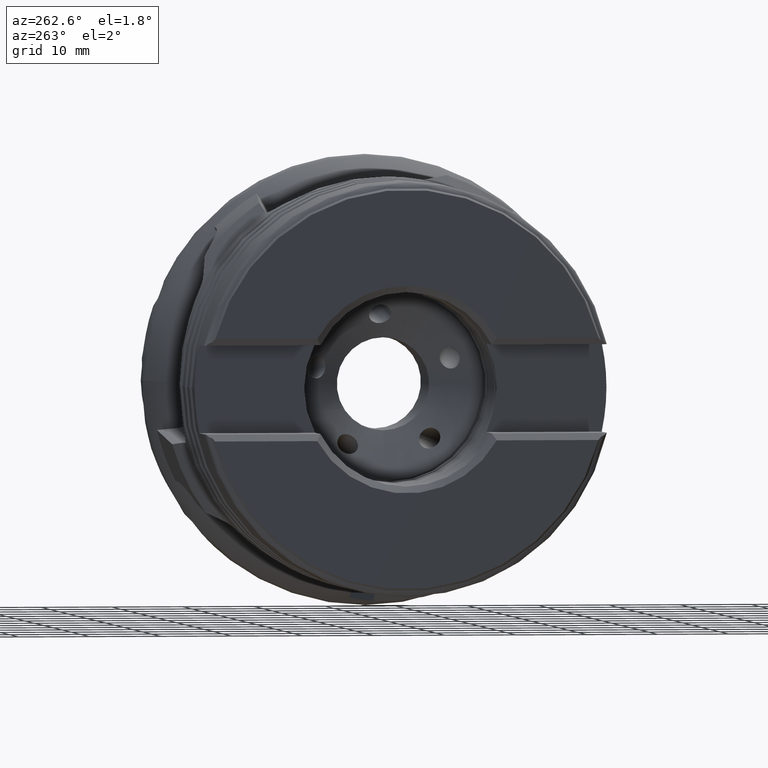
[diagram: clean part render]
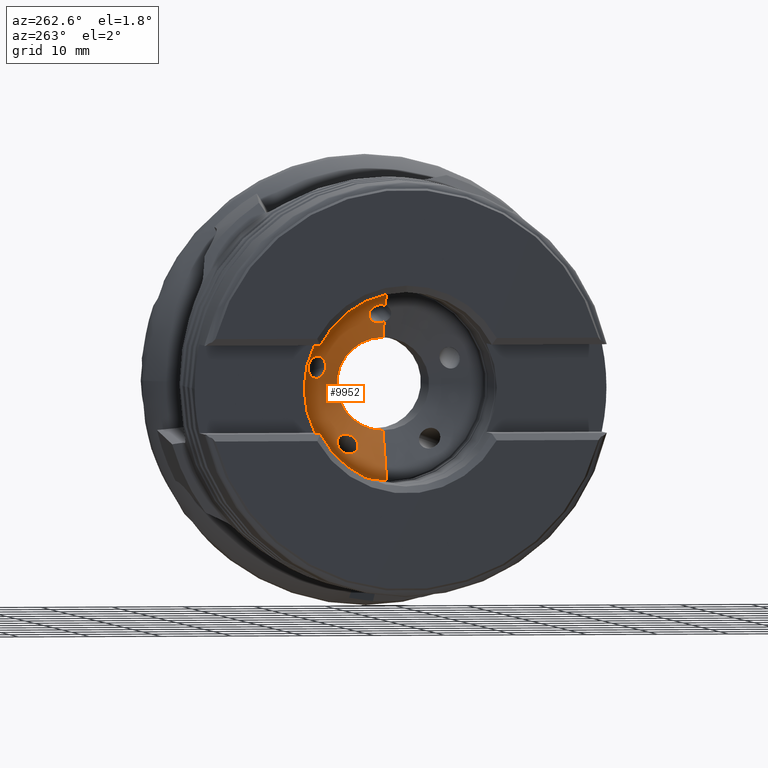
[diagram: same view with one face highlighted and labeled with its STEP entity id]
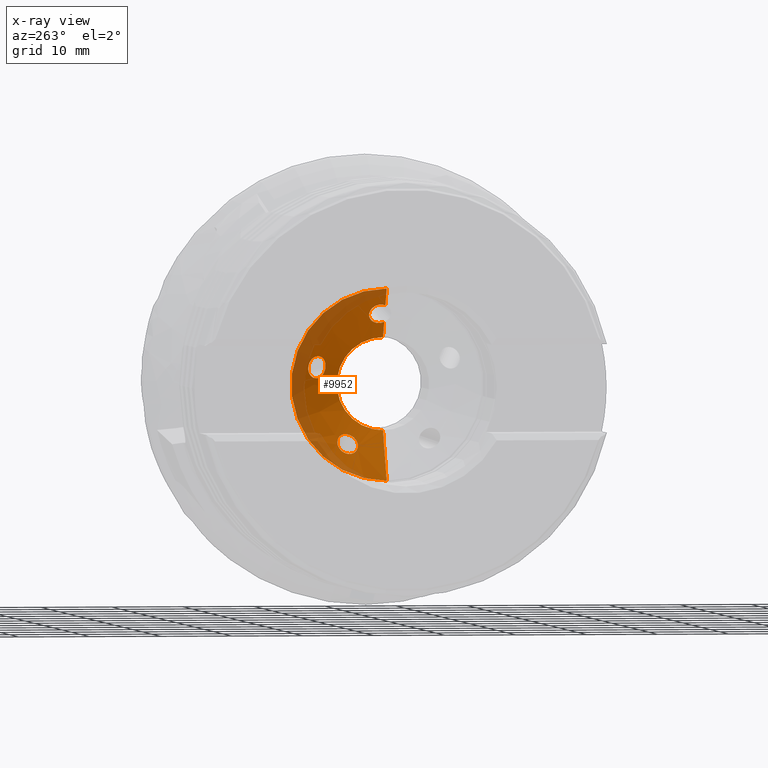
[diagram: x-ray of the same camera — body ghosted, the highlighted face saturated]
A machine part, auxiliary view. The second image highlights one B-rep face of the part: STEP entity #9952.
The next image is the same camera in x-ray: the body ghosted, the highlighted face saturated — about 31% of this face is hidden behind the body in this view.
In plain terms, the highlighted conical surface has half-angle 60 deg.
Its self-contained STEP definition (entity closure, byte-faithful):
#338 = CARTESIAN_POINT ( 'NONE',  ( -25.56358023476015300, -1.384384954681091700E-012, 11.02685375626323600 ) ) ;
#360 = CARTESIAN_POINT ( 'NONE',  ( -26.95000000000000300, 1.644480610425695100E-015, -13.42820323027542700 ) ) ;
#373 = DIRECTION ( 'NONE',  ( 1.000000000000000000, -0.0000000000000000000, -0.0000000000000000000 ) ) ;
#381 = DIRECTION ( 'NONE',  ( 0.0000000000000000000, 0.0000000000000000000, -1.000000000000000000 ) ) ;
#408 = CARTESIAN_POINT ( 'NONE',  ( -26.95000000000000300, 0.0000000000000000000, 0.0000000000000000000 ) ) ;
#558 = CARTESIAN_POINT ( 'NONE',  ( -24.15742040143022300, 8.251610350877568200, 2.391985357919235200 ) ) ;
#562 = CARTESIAN_POINT ( 'NONE',  ( -22.95000000000000300, 7.960204194457793500E-016, 6.499999999999997300 ) ) ;
#590 = CARTESIAN_POINT ( 'NONE',  ( -25.55926849021573900, 5.231105059518401200, -9.698577151403526400 ) ) ;
#604 = CARTESIAN_POINT ( 'NONE',  ( -26.95000000000000300, 0.0000000000000000000, 13.42820323027542700 ) ) ;
#624 = CARTESIAN_POINT ( 'NONE',  ( -24.24057022828447600, 5.231105059518402100, -6.995826332771656600 ) ) ;
#733 = CARTESIAN_POINT ( 'NONE',  ( -22.95000000000000300, 0.0000000000000000000, -6.499999999999997300 ) ) ;
#977 = EDGE_CURVE ( 'NONE', #1818, #1819, #2820, .T. ) ;
#990 = EDGE_CURVE ( 'NONE', #2739, #3309, #2972, .T. ) ;
#1019 = EDGE_CURVE ( 'NONE', #2708, #1962, #1548, .T. ) ;
#1080 = CARTESIAN_POINT ( 'NONE',  ( -25.45062589595287200, 1.800447555128324300, 10.68083400545929600 ) ) ;
#1093 = CARTESIAN_POINT ( 'NONE',  ( -25.50768649055383400, 1.654599074518111800, 10.80438953978278800 ) ) ;
#1095 = CARTESIAN_POINT ( 'NONE',  ( -25.63853396552734100, 0.6390776336853606400, 11.13835854018392300 ) ) ;
#1097 = CARTESIAN_POINT ( 'NONE',  ( -25.53290561030062000, 1.574292013130909700, 10.86058495848309500 ) ) ;
#1098 = CARTESIAN_POINT ( 'NONE',  ( -25.59235563991525500, 1.317191980707755900, 10.99852258601849200 ) ) ;
#1110 = CARTESIAN_POINT ( 'NONE',  ( -25.63289957320982300, 1.036786302028729800, 11.10028013828029700 ) ) ;
#1111 = CARTESIAN_POINT ( 'NONE',  ( -25.64375329316993300, 0.8393848597418304100, 11.13592066437589000 ) ) ;
#1137 = CARTESIAN_POINT ( 'NONE',  ( -25.57507434009070800, 1.405964445905568200, 10.95729463097800000 ) ) ;
#1308 = EDGE_LOOP ( 'NONE', ( #6097, #6098, #6099, #6100, #6101, #6102, #6103, #6104 ) ) ;
#1337 = EDGE_LOOP ( 'NONE', ( #6107, #6108 ) ) ;
#1347 = EDGE_LOOP ( 'NONE', ( #6105, #6106 ) ) ;
#1548 = CIRCLE ( 'NONE', #8327, 13.42820323027542500 ) ;
#1749 = CARTESIAN_POINT ( 'NONE',  ( -25.62323296733228500, 10.86924613008447300, 2.395890484783925500 ) ) ;
#1753 = CARTESIAN_POINT ( 'NONE',  ( -24.13825373108890600, 0.7173632931874786000, 8.527997217565689100 ) ) ;
#1818 = VERTEX_POINT ( 'NONE', #590 ) ;
#1819 = VERTEX_POINT ( 'NONE', #624 ) ;
#1962 = VERTEX_POINT ( 'NONE', #604 ) ;
#2521 = VERTEX_POINT ( 'NONE', #558 ) ;
#2523 = VERTEX_POINT ( 'NONE', #562 ) ;
#2532 = VERTEX_POINT ( 'NONE', #733 ) ;
#2708 = VERTEX_POINT ( 'NONE', #360 ) ;
#2721 = VERTEX_POINT ( 'NONE', #338 ) ;
#2735 = VERTEX_POINT ( 'NONE', #1749 ) ;
#2739 = VERTEX_POINT ( 'NONE', #1753 ) ;
#2820 = B_SPLINE_CURVE_WITH_KNOTS ( 'NONE', 3,
 ( #4740, #4694, #4723, #4766, #4724, #4736, #4756, #4765, #4771, #4750, #4725, #4693, #4732, #4703, #4685, #4730, #4749, #4748, #4745, #4707, #4702, #4687, #4686, #4727 ),
 .UNSPECIFIED., .F., .F.,
 ( 4, 2, 2, 2, 2, 2, 2, 2, 2, 2, 2, 4 ),
 ( 0.0006221246935150310400, 0.0009221019300990542400, 0.001222079166683077300, 0.001822033639851125900, 0.002421988113019174700, 0.003021942586187223900, 0.003321919822771248300, 0.003621897059355275300, 0.004221851532523331400, 0.004521828769107358800, 0.004821806005691385400, 0.005421760478859442000 ),
 .UNSPECIFIED. ) ;
#2901 = B_SPLINE_CURVE_WITH_KNOTS ( 'NONE', 3,
 ( #5273, #5275, #5279, #5280, #5281, #5282, #5283, #5284, #5285, #5286, #5287, #5288, #5289, #5290, #5291, #5292, #5293, #5294, #5295, #5296, #5297, #5298, #5299, #5300, #5301, #5302 ),
 .UNSPECIFIED., .F., .F.,
 ( 4, 2, 2, 2, 2, 2, 2, 2, 2, 2, 2, 2, 4 ),
 ( 0.003244339438130389300, 0.003845456634618282100, 0.004446573831106174900, 0.004747132429350122600, 0.005047691027594069400, 0.005348249625838016200, 0.005648808224081963000, 0.005949366822325909800, 0.006249925420569856600, 0.006851042617057755500, 0.007452159813545653500, 0.007752718411789602000, 0.008053277010033549700 ),
 .UNSPECIFIED. ) ;
#2927 = B_SPLINE_CURVE_WITH_KNOTS ( 'NONE', 3,
 ( #3618, #3619, #3624, #3625, #3626, #3627, #3628, #3629, #3630, #3631, #3632, #3633, #3634, #3635, #3636, #3637, #3638, #3639, #3640, #3641, #3642, #3643, #3644, #3645, #3646, #3647 ),
 .UNSPECIFIED., .F., .F.,
 ( 4, 2, 2, 2, 2, 2, 2, 2, 2, 2, 2, 2, 4 ),
 ( 0.005421760478859442000, 0.006017488807553985100, 0.006315352971901256300, 0.006613217136248526600, 0.006911081300595796900, 0.007208945464943066300, 0.007804673793637599900, 0.008102537957984866700, 0.008400402122332133500, 0.008996130451026667200, 0.009591858779721200800, 0.009889722944068469300, 0.01018758710841573600 ),
 .UNSPECIFIED. ) ;
#2943 = B_SPLINE_CURVE_WITH_KNOTS ( 'NONE', 3,
 ( #3888, #3889, #3911, #3912, #3913, #3914 ),
 .UNSPECIFIED., .F., .F.,
 ( 4, 2, 4 ),
 ( 0.0002267060076284219200, 0.0005968088209958120200, 0.0009669116343632020400 ),
 .UNSPECIFIED. ) ;
#2950 = B_SPLINE_CURVE_WITH_KNOTS ( 'NONE', 3,
 ( #3983, #3984, #3989, #3990, #3991, #3992 ),
 .UNSPECIFIED., .F., .F.,
 ( 4, 2, 4 ),
 ( 0.005726068212281944600, 0.006053239962102370200, 0.006380411711922794900 ),
 .UNSPECIFIED. ) ;
#2955 = B_SPLINE_CURVE_WITH_KNOTS ( 'NONE', 3,
 ( #4053, #4054, #4059, #4060, #4061, #4062, #4063, #4064, #4065, #4066, #4067, #4068, #4069, #4070, #4071, #4072, #4073, #4074, #4075, #4076, #4077, #4078, #4079, #4080 ),
 .UNSPECIFIED., .F., .F.,
 ( 4, 2, 2, 2, 2, 2, 2, 2, 2, 2, 2, 4 ),
 ( 0.008053277010033549700, 0.008350967434924173900, 0.008648657859814798100, 0.009244038709596049900, 0.009839419559377300000, 0.01043480040915855000, 0.01073249083404917800, 0.01103018125893980500, 0.01162556210872105500, 0.01192325253361168000, 0.01222094295850230600, 0.01281632380828355900 ),
 .UNSPECIFIED. ) ;
#2972 = B_SPLINE_CURVE_WITH_KNOTS ( 'NONE', 3,
 ( #4738, #4710, #4743, #4728, #4778, #4696, #4747, #4755, #4698, #4713, #4770, #4739, #4718, #4719, #4731, #4760, #4704, #4761, #4777, #4697, #1080, #1093, #1097, #1137, #1098, #1110, #1111, #1095 ),
 .UNSPECIFIED., .F., .F.,
 ( 4, 2, 2, 2, 2, 2, 2, 2, 2, 2, 2, 2, 2, 4 ),
 ( 0.0009669116343632020400, 0.001264358920483126500, 0.001561806206603050400, 0.002156700778842897400, 0.002454148064962820500, 0.002751595351082743900, 0.003049042637202667000, 0.003346489923322590100, 0.003941384495562431400, 0.004238831781682350100, 0.004536279067802268800, 0.004833726353922187600, 0.005131173640042105400, 0.005726068212281944600 ),
 .UNSPECIFIED. ) ;
#3308 = VERTEX_POINT ( 'NONE', #5238 ) ;
#3309 = VERTEX_POINT ( 'NONE', #5239 ) ;
#3330 = EDGE_CURVE ( 'NONE', #2735, #2521, #2901, .T. ) ;
#3369 = EDGE_CURVE ( 'NONE', #2532, #2523, #4946, .T. ) ;
#3409 = EDGE_CURVE ( 'NONE', #1819, #1818, #2927, .T. ) ;
#3414 = EDGE_CURVE ( 'NONE', #2523, #3308, #4999, .T. ) ;
#3415 = EDGE_CURVE ( 'NONE', #2721, #1962, #4997, .T. ) ;
#3443 = EDGE_CURVE ( 'NONE', #2532, #2708, #5029, .T. ) ;
#3452 = EDGE_CURVE ( 'NONE', #3308, #2739, #2943, .T. ) ;
#3460 = EDGE_CURVE ( 'NONE', #3309, #2721, #2950, .T. ) ;
#3472 = EDGE_CURVE ( 'NONE', #2521, #2735, #2955, .T. ) ;
#3618 = CARTESIAN_POINT ( 'NONE',  ( -24.24057022828447600, 5.231105059518402100, -6.995826332771656600 ) ) ;
#3619 = CARTESIAN_POINT ( 'NONE',  ( -24.18883515262307100, 5.041524854979788200, -7.025695592630824200 ) ) ;
#3624 = CARTESIAN_POINT ( 'NONE',  ( -24.15448452742017300, 4.850153281030924500, -7.087890382036878400 ) ) ;
#3625 = CARTESIAN_POINT ( 'NONE',  ( -24.13556760920195300, 4.584481071639234400, -7.221771460513728000 ) ) ;
#3626 = CARTESIAN_POINT ( 'NONE',  ( -24.13455029858111800, 4.497683197756346700, -7.274085542344793400 ) ) ;
#3627 = CARTESIAN_POINT ( 'NONE',  ( -24.14355979165915000, 4.335450946412983300, -7.390025717957092500 ) ) ;
#3628 = CARTESIAN_POINT ( 'NONE',  ( -24.15342948788144300, 4.259842896649111300, -7.453499860312982500 ) ) ;
#3629 = CARTESIAN_POINT ( 'NONE',  ( -24.18385420939967300, 4.119900810799754800, -7.591762847944142600 ) ) ;
#3630 = CARTESIAN_POINT ( 'NONE',  ( -24.20471753586946000, 4.055195248440417000, -7.667315088530333600 ) ) ;
#3631 = CARTESIAN_POINT ( 'NONE',  ( -24.25543669391044000, 3.943329285432602700, -7.823941205030236800 ) ) ;
#3632 = CARTESIAN_POINT ( 'NONE',  ( -24.28535144970250000, 3.895397569472193800, -7.905587236794279000 ) ) ;
#3633 = CARTESIAN_POINT ( 'NONE',  ( -24.38846363032086700, 3.776569443603146900, -8.161225247029806300 ) ) ;
#3634 = CARTESIAN_POINT ( 'NONE',  ( -24.47274981978131700, 3.733723098753870300, -8.340161335330849500 ) ) ;
#3635 = CARTESIAN_POINT ( 'NONE',  ( -24.61314031759045700, 3.729970292470058600, -8.607273321894494300 ) ) ;
#3636 = CARTESIAN_POINT ( 'NONE',  ( -24.66115183655258400, 3.738739438101462000, -8.694000172955739500 ) ) ;
#3637 = CARTESIAN_POINT ( 'NONE',  ( -24.75930578575822200, 3.775712987680586200, -8.863100057812308900 ) ) ;
#3638 = CARTESIAN_POINT ( 'NONE',  ( -24.81001493560488700, 3.804444848715204100, -8.946312537603098700 ) ) ;
#3639 = CARTESIAN_POINT ( 'NONE',  ( -24.95952602627854900, 3.917307724484185200, -9.179715056177757400 ) ) ;
#3640 = CARTESIAN_POINT ( 'NONE',  ( -25.05865684579019300, 4.030365694011028000, -9.318386518562709500 ) ) ;
#3641 = CARTESIAN_POINT ( 'NONE',  ( -25.23914271840794000, 4.309451068447272900, -9.536769244338879400 ) ) ;
#3642 = CARTESIAN_POINT ( 'NONE',  ( -25.32235968792945300, 4.478237116811213200, -9.618633923930485000 ) ) ;
#3643 = CARTESIAN_POINT ( 'NONE',  ( -25.42718111986111400, 4.752132027136890500, -9.688115174875738600 ) ) ;
#3644 = CARTESIAN_POINT ( 'NONE',  ( -25.45840271419157100, 4.845461769374391100, -9.702338918133939700 ) ) ;
#3645 = CARTESIAN_POINT ( 'NONE',  ( -25.51406926308484200, 5.035911551652383800, -9.713598761287427100 ) ) ;
#3646 = CARTESIAN_POINT ( 'NONE',  ( -25.53871140253866700, 5.134096056379000600, -9.710445791507634500 ) ) ;
#3647 = CARTESIAN_POINT ( 'NONE',  ( -25.55926849021573900, 5.231105059518401200, -9.698577151403526400 ) ) ;
#3655 = CARTESIAN_POINT ( 'NONE',  ( -22.95000000000000300, 0.0000000000000000000, 6.499999999999997300 ) ) ;
#3678 = DIRECTION ( 'NONE',  ( -0.5000000000000042200, 0.0000000000000000000, 0.8660254037844361500 ) ) ;
#3679 = CARTESIAN_POINT ( 'NONE',  ( -22.95000000000000300, 0.0000000000000000000, 6.499999999999997300 ) ) ;
#3680 = DIRECTION ( 'NONE',  ( -0.5000000000000042200, 0.0000000000000000000, 0.8660254037844361500 ) ) ;
#3783 = DIRECTION ( 'NONE',  ( -0.5000000000000042200, 1.060575238724903700E-016, -0.8660254037844361500 ) ) ;
#3818 = CARTESIAN_POINT ( 'NONE',  ( -22.95000000000000300, 7.960204194457792500E-016, -6.499999999999997300 ) ) ;
#3888 = CARTESIAN_POINT ( 'NONE',  ( -24.20787044976869500, -1.833695900038620000E-016, 8.678695528338863600 ) ) ;
#3889 = CARTESIAN_POINT ( 'NONE',  ( -24.18085518677817100, 0.1109653062014713500, 8.631903720259453300 ) ) ;
#3911 = CARTESIAN_POINT ( 'NONE',  ( -24.16087714637152200, 0.2285367136676262600, 8.595132377986924900 ) ) ;
#3912 = CARTESIAN_POINT ( 'NONE',  ( -24.13715878570199500, 0.4711946753620528400, 8.544109929322253500 ) ) ;
#3913 = CARTESIAN_POINT ( 'NONE',  ( -24.13353626852008900, 0.5936902616833506000, 8.530200679134043900 ) ) ;
#3914 = CARTESIAN_POINT ( 'NONE',  ( -24.13825373108890600, 0.7173632931874786000, 8.527997217565689100 ) ) ;
#3983 = CARTESIAN_POINT ( 'NONE',  ( -25.63853396552734100, 0.6390776336853606400, 11.13835854018392300 ) ) ;
#3984 = CARTESIAN_POINT ( 'NONE',  ( -25.63566351311880000, 0.5289154827620051700, 11.13969928883281000 ) ) ;
#3989 = CARTESIAN_POINT ( 'NONE',  ( -25.62798144014176000, 0.4203741068092481400, 11.13097279414387100 ) ) ;
#3990 = CARTESIAN_POINT ( 'NONE',  ( -25.60305044563698800, 0.2064780345773304100, 11.09380683245320000 ) ) ;
#3991 = CARTESIAN_POINT ( 'NONE',  ( -25.58550778491925500, 0.1001325995881527100, 11.06483338722337700 ) ) ;
#3992 = CARTESIAN_POINT ( 'NONE',  ( -25.56358023476015300, -1.384384954681091700E-012, 11.02685375626323600 ) ) ;
#4053 = CARTESIAN_POINT ( 'NONE',  ( -24.15742040143022300, 8.251610350877568200, 2.391985357919235200 ) ) ;
#4054 = CARTESIAN_POINT ( 'NONE',  ( -24.14524851724303300, 8.258293844064491300, 2.293207822936492900 ) ) ;
#4059 = CARTESIAN_POINT ( 'NONE',  ( -24.13819160140051800, 8.272756158935360200, 2.193362912496505100 ) ) ;
#4060 = CARTESIAN_POINT ( 'NONE',  ( -24.13503188194530200, 8.316045578462597700, 1.999769680881265300 ) ) ;
#4061 = CARTESIAN_POINT ( 'NONE',  ( -24.13876256076098800, 8.344893996901230800, 1.904953134468717800 ) ) ;
#4062 = CARTESIAN_POINT ( 'NONE',  ( -24.16655297928511800, 8.454287573554967800, 1.626780704660734300 ) ) ;
#4063 = CARTESIAN_POINT ( 'NONE',  ( -24.20644771165074300, 8.554459350956618000, 1.457594796049106900 ) ) ;
#4064 = CARTESIAN_POINT ( 'NONE',  ( -24.32533537560005500, 8.806615150580123300, 1.167261651301343800 ) ) ;
#4065 = CARTESIAN_POINT ( 'NONE',  ( -24.40298436061776500, 8.955652338315694300, 1.051221178197929900 ) ) ;
#4066 = CARTESIAN_POINT ( 'NONE',  ( -24.57752804900970700, 9.276325825265040200, 0.8954032174341812800 ) ) ;
#4067 = CARTESIAN_POINT ( 'NONE',  ( -24.67585851931624300, 9.450725077267323500, 0.8546021661301730400 ) ) ;
#4068 = CARTESIAN_POINT ( 'NONE',  ( -24.82480794148347100, 9.709652266787903900, 0.8554737033650616800 ) ) ;
#4069 = CARTESIAN_POINT ( 'NONE',  ( -24.87550826834433700, 9.796876415509544200, 0.8661049517958087100 ) ) ;
#4070 = CARTESIAN_POINT ( 'NONE',  ( -24.97405154962004700, 9.964593633266355600, 0.9067923539674938000 ) ) ;
#4071 = CARTESIAN_POINT ( 'NONE',  ( -25.02244467935387800, 10.04605191278341000, 0.9367389191933416200 ) ) ;
#4072 = CARTESIAN_POINT ( 'NONE',  ( -25.16517634300472400, 10.28290920544044300, 1.056063254561967900 ) ) ;
#4073 = CARTESIAN_POINT ( 'NONE',  ( -25.25279721706242200, 10.42369271582362500, 1.171780902225941800 ) ) ;
#4074 = CARTESIAN_POINT ( 'NONE',  ( -25.36757315052235400, 10.59708206614298100, 1.387671930554267500 ) ) ;
#4075 = CARTESIAN_POINT ( 'NONE',  ( -25.40251746234642000, 10.64777333955458600, 1.465537785873981500 ) ) ;
#4076 = CARTESIAN_POINT ( 'NONE',  ( -25.46626770163468800, 10.73511638493816100, 1.632752436365942900 ) ) ;
#4077 = CARTESIAN_POINT ( 'NONE',  ( -25.49514817354028700, 10.77177835640540400, 1.722727989051230600 ) ) ;
#4078 = CARTESIAN_POINT ( 'NONE',  ( -25.56947085457993300, 10.85588810130700700, 1.999003448937583000 ) ) ;
#4079 = CARTESIAN_POINT ( 'NONE',  ( -25.60451144195832600, 10.87952598366851100, 2.198615870730380000 ) ) ;
#4080 = CARTESIAN_POINT ( 'NONE',  ( -25.62323296733228500, 10.86924613008447300, 2.395890484783925500 ) ) ;
#4394 = FACE_BOUND ( 'NONE', #1347, .T. ) ;
#4397 = FACE_OUTER_BOUND ( 'NONE', #1308, .T. ) ;
#4398 = FACE_BOUND ( 'NONE', #1337, .T. ) ;
#4403 = CONICAL_SURFACE ( 'NONE', #8597, 6.499999999999997300, 1.047197551196592700 ) ;
#4685 = CARTESIAN_POINT ( 'NONE',  ( -25.07030607219163100, 6.655410785407564600, -7.693200479056248000 ) ) ;
#4686 = CARTESIAN_POINT ( 'NONE',  ( -24.29267231671553900, 5.422030161210807700, -6.965745177990144500 ) ) ;
#4687 = CARTESIAN_POINT ( 'NONE',  ( -24.36342400793329700, 5.615267487042941300, -6.967844246618728500 ) ) ;
#4693 = CARTESIAN_POINT ( 'NONE',  ( -25.25269373352171300, 6.731887895032098600, -8.043092737242123000 ) ) ;
#4694 = CARTESIAN_POINT ( 'NONE',  ( -25.57997141151913900, 5.328802252295180800, -9.686624314215995600 ) ) ;
#4696 = CARTESIAN_POINT ( 'NONE',  ( -24.27465961980747300, 1.483161270996411500, 8.670142617222868600 ) ) ;
#4697 = CARTESIAN_POINT ( 'NONE',  ( -25.41886513849123500, 1.866218658225184700, 10.61360915754345600 ) ) ;
#4698 = CARTESIAN_POINT ( 'NONE',  ( -24.51081070173203400, 1.923321567147788600, 9.000271908481886700 ) ) ;
#4702 = CARTESIAN_POINT ( 'NONE',  ( -24.48664622521306100, 5.884056741588657300, -7.022475374330409400 ) ) ;
#4703 = CARTESIAN_POINT ( 'NONE',  ( -25.11757438631165900, 6.684213927896244000, -7.776549526387085200 ) ) ;
#4704 = CARTESIAN_POINT ( 'NONE',  ( -25.18717688383331000, 2.158856215916261400, 10.14843675884738000 ) ) ;
#4707 = CARTESIAN_POINT ( 'NONE',  ( -24.53129064379465200, 5.971741641554294800, -7.049586966441639300 ) ) ;
#4710 = CARTESIAN_POINT ( 'NONE',  ( -24.14204510037298900, 0.8167578566938678000, 8.526226321372023500 ) ) ;
#4713 = CARTESIAN_POINT ( 'NONE',  ( -24.60263113740573000, 2.030972653906293300, 9.139577606337901700 ) ) ;
#4718 = CARTESIAN_POINT ( 'NONE',  ( -24.79893251128180500, 2.175628030984091000, 9.455373584819797700 ) ) ;
#4719 = CARTESIAN_POINT ( 'NONE',  ( -24.89868830171863600, 2.209160324803979500, 9.624953448249996800 ) ) ;
#4723 = CARTESIAN_POINT ( 'NONE',  ( -25.59663684580549200, 5.425287674857485400, -9.666083156152996700 ) ) ;
#4724 = CARTESIAN_POINT ( 'NONE',  ( -25.63110988145159700, 5.710259421261303800, -9.570139931487450000 ) ) ;
#4725 = CARTESIAN_POINT ( 'NONE',  ( -25.37403268989616100, 6.729380904997789500, -8.317950802798451400 ) ) ;
#4727 = CARTESIAN_POINT ( 'NONE',  ( -24.24057022828447600, 5.231105059518402100, -6.995826332771656600 ) ) ;
#4728 = CARTESIAN_POINT ( 'NONE',  ( -24.18056380853574400, 1.112045803873011400, 8.559989279650205100 ) ) ;
#4730 = CARTESIAN_POINT ( 'NONE',  ( -24.92274880319116500, 6.539443210089155300, -7.455380232374333000 ) ) ;
#4731 = CARTESIAN_POINT ( 'NONE',  ( -24.94887794230284300, 2.215960967002442100, 9.712600475218057000 ) ) ;
#4732 = CARTESIAN_POINT ( 'NONE',  ( -25.20861762913639100, 6.722556210683967100, -7.951074818987593500 ) ) ;
#4736 = CARTESIAN_POINT ( 'NONE',  ( -25.64510160936757500, 5.978452767077592400, -9.435216276447219400 ) ) ;
#4738 = CARTESIAN_POINT ( 'NONE',  ( -24.13825373108890600, 0.7173632931874786000, 8.527997217565689100 ) ) ;
#4739 = CARTESIAN_POINT ( 'NONE',  ( -24.74944128015501800, 2.149210673547232300, 9.373504212460321800 ) ) ;
#4740 = CARTESIAN_POINT ( 'NONE',  ( -25.55926849021573900, 5.231105059518401200, -9.698577151403526400 ) ) ;
#4743 = CARTESIAN_POINT ( 'NONE',  ( -24.15144975140734100, 0.9175508998699116700, 8.532302971562318200 ) ) ;
#4745 = CARTESIAN_POINT ( 'NONE',  ( -24.62387698419812300, 6.135774706359197400, -7.120360296472434800 ) ) ;
#4747 = CARTESIAN_POINT ( 'NONE',  ( -24.34309050116288000, 1.650263867007588400, 8.759545343202036700 ) ) ;
#4748 = CARTESIAN_POINT ( 'NONE',  ( -24.67178435717229600, 6.212301109942004900, -7.163808090343815500 ) ) ;
#4749 = CARTESIAN_POINT ( 'NONE',  ( -24.82018393922197000, 6.424818626788058900, -7.319580611352512800 ) ) ;
#4750 = CARTESIAN_POINT ( 'NONE',  ( -25.44385899667406300, 6.687006940104087200, -8.507264419072731300 ) ) ;
#4755 = CARTESIAN_POINT ( 'NONE',  ( -24.46705769168555400, 1.861380602609942200, 8.935995546765280300 ) ) ;
#4756 = CARTESIAN_POINT ( 'NONE',  ( -25.63798993260854800, 6.144041309053612600, -9.313379037523340300 ) ) ;
#4760 = CARTESIAN_POINT ( 'NONE',  ( -25.09403663093513300, 2.206172168907052800, 9.972562967331395400 ) ) ;
#4761 = CARTESIAN_POINT ( 'NONE',  ( -25.30967910639682100, 2.034404391478314500, 10.38993490617018400 ) ) ;
#4765 = CARTESIAN_POINT ( 'NONE',  ( -25.59178197699345200, 6.419802344122262900, -9.027465210451735400 ) ) ;
#4766 = CARTESIAN_POINT ( 'NONE',  ( -25.62223639580371800, 5.615823183370507900, -9.608035104557741200 ) ) ;
#4770 = CARTESIAN_POINT ( 'NONE',  ( -24.65129468574176400, 2.077043502710640000, 9.215578578889827500 ) ) ;
#4771 = CARTESIAN_POINT ( 'NONE',  ( -25.55204768797712600, 6.533099241689605200, -8.859922712345595000 ) ) ;
#4777 = CARTESIAN_POINT ( 'NONE',  ( -25.34846542438618000, 1.983270771573231200, 10.46828381226309400 ) ) ;
#4778 = CARTESIAN_POINT ( 'NONE',  ( -24.20024075693478200, 1.206777070961474200, 8.581477532552741000 ) ) ;
#4946 = CIRCLE ( 'NONE', #8453, 6.499999999999997300 ) ;
#4997 = LINE ( 'NONE', #3679, #5004 ) ;
#4999 = LINE ( 'NONE', #3655, #5002 ) ;
#5002 = VECTOR ( 'NONE', #3678, 1000.000000000000100 ) ;
#5004 = VECTOR ( 'NONE', #3680, 1000.000000000000100 ) ;
#5029 = LINE ( 'NONE', #3818, #5039 ) ;
#5039 = VECTOR ( 'NONE', #3783, 1000.000000000000100 ) ;
#5238 = CARTESIAN_POINT ( 'NONE',  ( -24.20787044976869500, -1.833695900038620000E-016, 8.678695528338863600 ) ) ;
#5239 = CARTESIAN_POINT ( 'NONE',  ( -25.63853396552734100, 0.6390776336853606400, 11.13835854018392300 ) ) ;
#5273 = CARTESIAN_POINT ( 'NONE',  ( -25.62323296733228500, 10.86924613008447300, 2.395890484783925500 ) ) ;
#5275 = CARTESIAN_POINT ( 'NONE',  ( -25.64213486995632300, 10.85886723266275700, 2.595065790777846700 ) ) ;
#5279 = CARTESIAN_POINT ( 'NONE',  ( -25.64481958624281800, 10.81366809720982800, 2.796151415074969100 ) ) ;
#5280 = CARTESIAN_POINT ( 'NONE',  ( -25.61751271717516000, 10.66191889077611400, 3.165947093803088900 ) ) ;
#5281 = CARTESIAN_POINT ( 'NONE',  ( -25.58728461015716200, 10.55390978279785600, 3.338504990429397100 ) ) ;
#5282 = CARTESIAN_POINT ( 'NONE',  ( -25.51908206436043600, 10.35685443116378900, 3.555454481347084100 ) ) ;
#5283 = CARTESIAN_POINT ( 'NONE',  ( -25.49205160984512700, 10.28400132352508400, 3.622199348462835200 ) ) ;
#5284 = CARTESIAN_POINT ( 'NONE',  ( -25.43159940694433300, 10.13115767076632600, 3.737432481201029800 ) ) ;
#5285 = CARTESIAN_POINT ( 'NONE',  ( -25.39807375464019400, 10.05075824951748200, 3.786624849723025900 ) ) ;
#5286 = CARTESIAN_POINT ( 'NONE',  ( -25.32378360634977800, 9.881860564518747800, 3.867516694677944700 ) ) ;
#5287 = CARTESIAN_POINT ( 'NONE',  ( -25.28303637453224400, 9.793540014491377100, 3.898802522327931000 ) ) ;
#5288 = CARTESIAN_POINT ( 'NONE',  ( -25.19759434671724600, 9.617237024416212400, 3.940156706866167400 ) ) ;
#5289 = CARTESIAN_POINT ( 'NONE',  ( -25.15236023453466500, 9.528035211467432900, 3.950785828350843700 ) ) ;
#5290 = CARTESIAN_POINT ( 'NONE',  ( -25.05684676748413900, 9.348744818661916900, 3.950661685641845700 ) ) ;
#5291 = CARTESIAN_POINT ( 'NONE',  ( -25.00816341121223700, 9.261643932487107400, 3.939952250757881500 ) ) ;
#5292 = CARTESIAN_POINT ( 'NONE',  ( -24.90882868796502300, 9.092435292981447100, 3.898092594967357300 ) ) ;
#5293 = CARTESIAN_POINT ( 'NONE',  ( -24.85761092388993600, 9.009511574474823100, 3.866357264949106000 ) ) ;
#5294 = CARTESIAN_POINT ( 'NONE',  ( -24.70713296285458700, 8.778396887121697700, 3.743964352083589900 ) ) ;
#5295 = CARTESIAN_POINT ( 'NONE',  ( -24.60794192292993500, 8.643197088867328400, 3.623771840224338200 ) ) ;
#5296 = CARTESIAN_POINT ( 'NONE',  ( -24.43099450577558300, 8.430758156039132700, 3.332919168272974600 ) ) ;
#5297 = CARTESIAN_POINT ( 'NONE',  ( -24.35185626806647000, 8.351593941458315100, 3.160152422201608000 ) ) ;
#5298 = CARTESIAN_POINT ( 'NONE',  ( -24.25871770631252400, 8.279660172862005400, 2.882645628610534000 ) ) ;
#5299 = CARTESIAN_POINT ( 'NONE',  ( -24.23141366624468800, 8.263079784627095100, 2.785471229914107600 ) ) ;
#5300 = CARTESIAN_POINT ( 'NONE',  ( -24.18706045816184900, 8.245828269868148700, 2.590339802911239000 ) ) ;
#5301 = CARTESIAN_POINT ( 'NONE',  ( -24.16970955870033000, 8.244862463892687300, 2.491714589933720100 ) ) ;
#5302 = CARTESIAN_POINT ( 'NONE',  ( -24.15742040143022300, 8.251610350877568200, 2.391985357919235200 ) ) ;
#5454 = CARTESIAN_POINT ( 'NONE',  ( -22.95000000000000300, 0.0000000000000000000, 0.0000000000000000000 ) ) ;
#5455 = DIRECTION ( 'NONE',  ( 1.000000000000000000, -0.0000000000000000000, -0.0000000000000000000 ) ) ;
#5456 = DIRECTION ( 'NONE',  ( 0.0000000000000000000, 0.0000000000000000000, -1.000000000000000000 ) ) ;
#6097 = ORIENTED_EDGE ( 'NONE', *, *, #3443, .F. ) ;
#6098 = ORIENTED_EDGE ( 'NONE', *, *, #3369, .T. ) ;
#6099 = ORIENTED_EDGE ( 'NONE', *, *, #3414, .T. ) ;
#6100 = ORIENTED_EDGE ( 'NONE', *, *, #3452, .T. ) ;
#6101 = ORIENTED_EDGE ( 'NONE', *, *, #990, .T. ) ;
#6102 = ORIENTED_EDGE ( 'NONE', *, *, #3460, .T. ) ;
#6103 = ORIENTED_EDGE ( 'NONE', *, *, #3415, .T. ) ;
#6104 = ORIENTED_EDGE ( 'NONE', *, *, #1019, .F. ) ;
#6105 = ORIENTED_EDGE ( 'NONE', *, *, #3330, .T. ) ;
#6106 = ORIENTED_EDGE ( 'NONE', *, *, #3472, .T. ) ;
#6107 = ORIENTED_EDGE ( 'NONE', *, *, #977, .T. ) ;
#6108 = ORIENTED_EDGE ( 'NONE', *, *, #3409, .T. ) ;
#6496 = DIRECTION ( 'NONE',  ( 0.0000000000000000000, 0.0000000000000000000, 1.000000000000000000 ) ) ;
#6501 = CARTESIAN_POINT ( 'NONE',  ( -22.95000000000000300, 0.0000000000000000000, 0.0000000000000000000 ) ) ;
#6502 = DIRECTION ( 'NONE',  ( -1.000000000000000000, 0.0000000000000000000, 0.0000000000000000000 ) ) ;
#8327 = AXIS2_PLACEMENT_3D ( 'NONE', #408, #373, #381 ) ;
#8453 = AXIS2_PLACEMENT_3D ( 'NONE', #5454, #5455, #5456 ) ;
#8597 = AXIS2_PLACEMENT_3D ( 'NONE', #6501, #6502, #6496 ) ;
#9952 = ADVANCED_FACE ( 'NONE', ( #4397, #4394, #4398 ), #4403, .F. ) ;